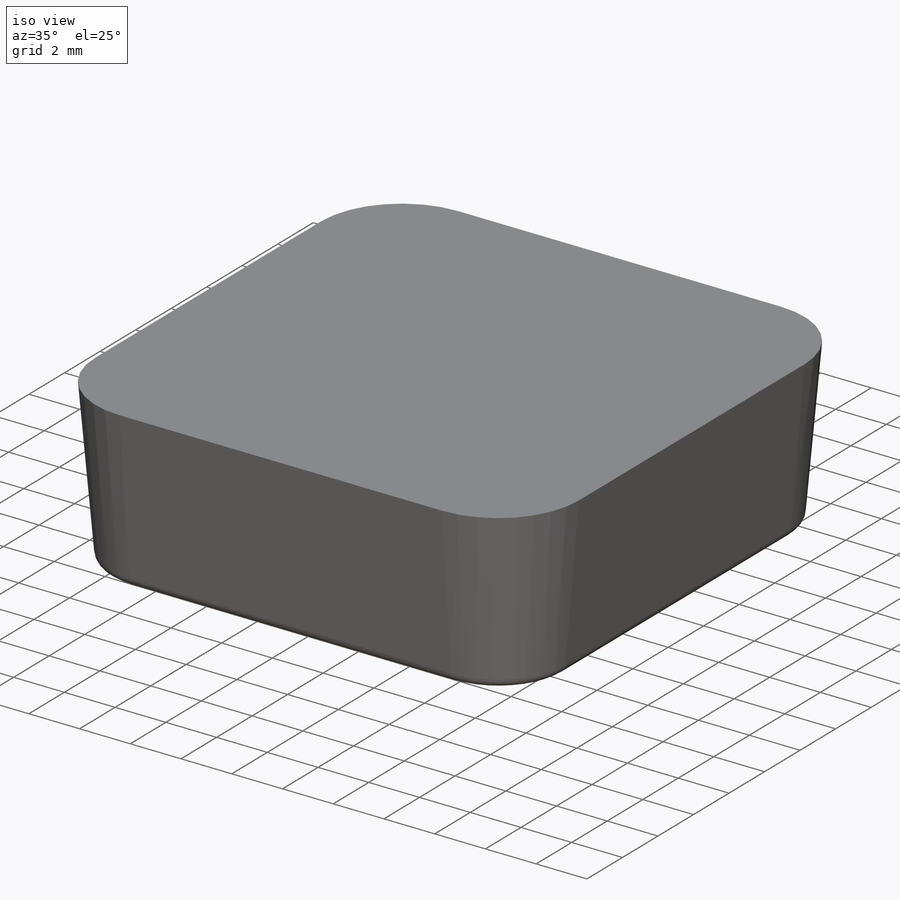
[diagram: iso view]
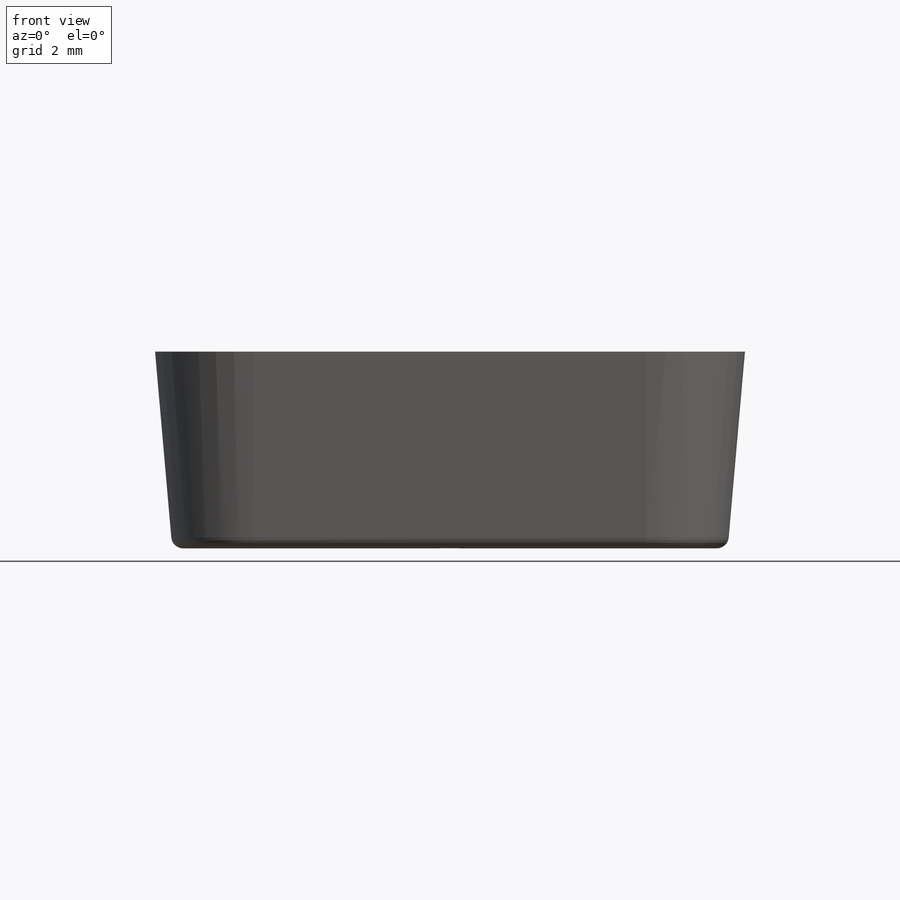
[diagram: front view]
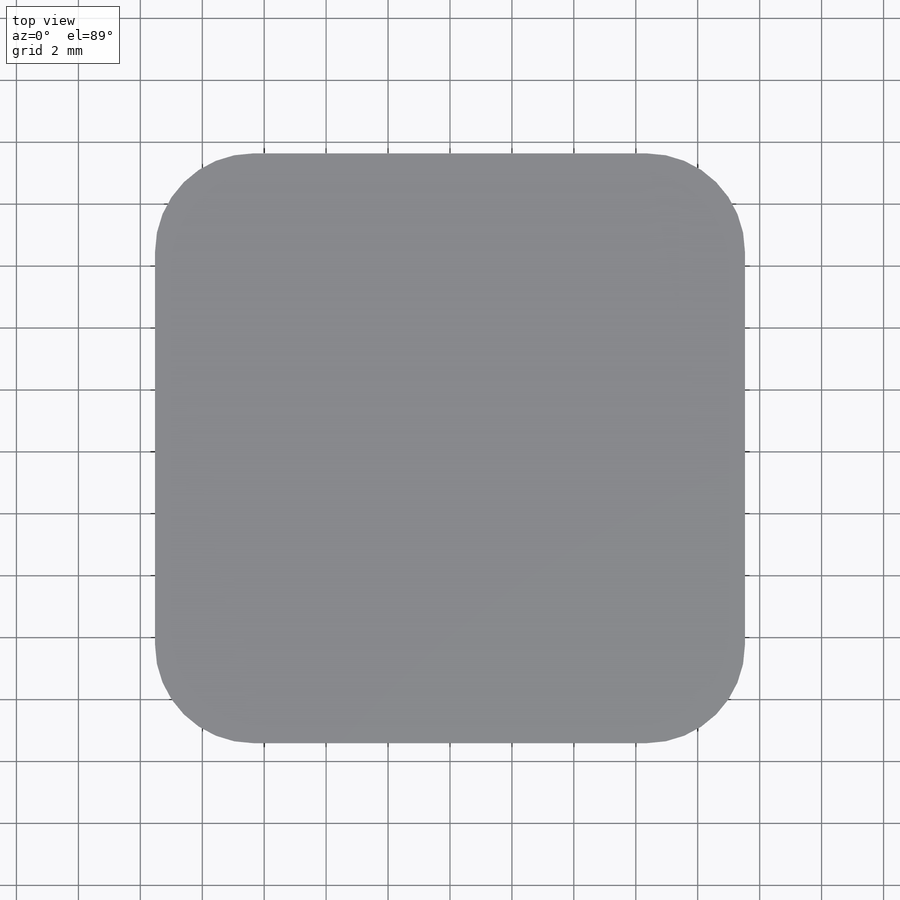
[diagram: top view]
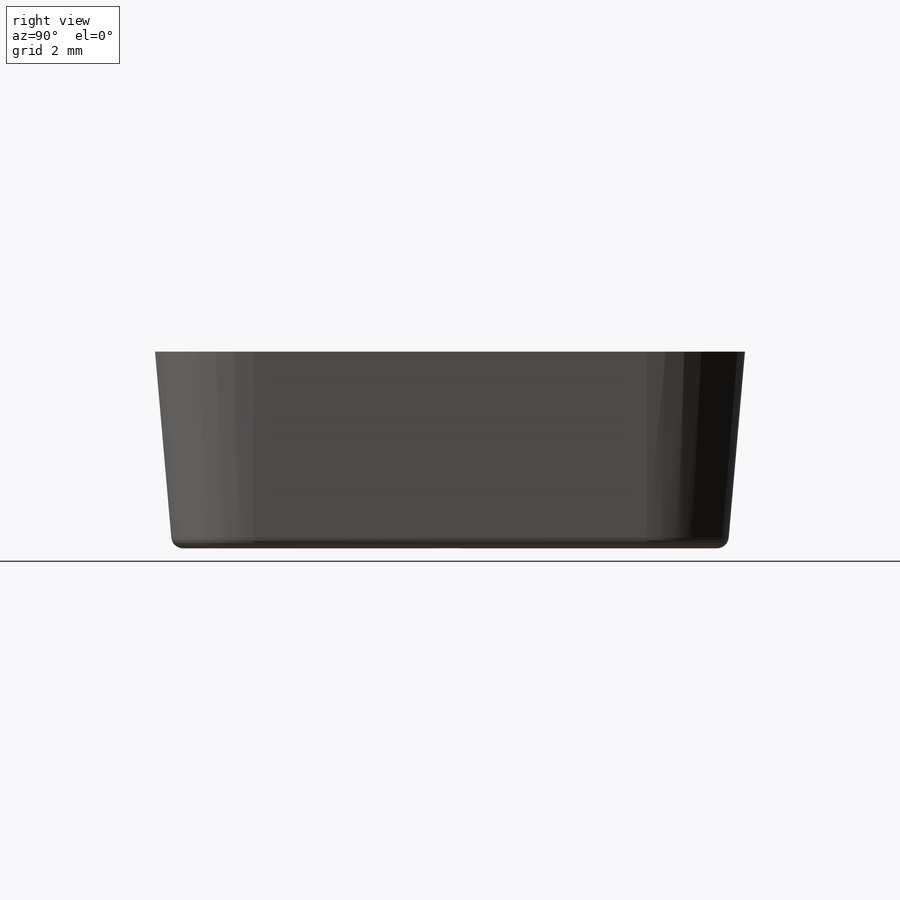
[diagram: right view]
SOLIDWORKS PART (.sldprt)
format: sldprt  version: not decoded by parser v0  size: 458,752 bytes
history: native  units: mm
features: sketch x8, extrude x3, plane x2, cut_extrude x2, pattern_circular x2, material x1, fillet x1 (+12 scaffold rows collapsed)
feature tree (31):
  scaffold x12  (default folders/planes/origin — collapsed)
  material  "CA"
  sketch  "Sketch1"  dims[D3=3.175mm D1=19.05mm D2=19.05mm]
  extrude  "Boss-Extrude1"  Depth=6.35mm
  sketch  "Sketch12"
  plane  "Plane2"
  sketch  "Sketch6"  dims[c1.D1=2.159mm c1.D2=~8.361978mm c2.D2=90.0deg c2.D3=9.525mm]
  cut_extrude  "Cut-Extrude3"  [1 undecoded]
  pattern_circular  "CirPattern3"  Count=12 Angle=30deg
  sketch  "Sketch7"  dims[D1=0.0mm D2=2.032mm]
  extrude  "Boss-Extrude3"  Depth=6.35mm
  fillet  "Fillet2"  Radius=0.381mm
  plane  "Plane1"  Offset=0.381mm
  sketch  "Sketch8"  dims[D1=2.3622mm D2=7.493mm]
  extrude  "Boss-Extrude4"  [1 undecoded]
  sketch  "Sketch9"
  cut_extrude  "Cut-Extrude4"  [1 undecoded]
  sketch  "Sketch10"
  pattern_circular  "CirPattern4"  Count=4 Angle=360deg
  sketch  "Sketch11 - OFFSET .005"  dims[D1=0.127mm]
decode coverage: 10 of 16 modeling features carry decoded parameters
note: ~ marks probable driven/reference dimensions
note: 3 parameter values undecoded
summary: no parameter record found for 3 features
note: suppression state not decoded; provenance and decode notes live in map.json
